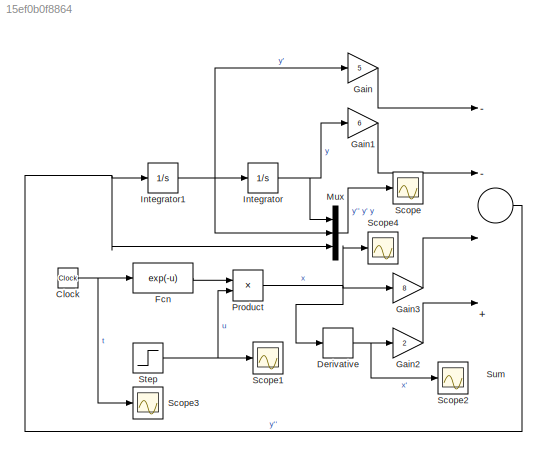
MODEL slx_15ef0b0f8864
KIND model
BLOCK [Clock] Clock
BLOCK [Derivative] Derivative
BLOCK [Fcn] Fcn
  Expr = exp(-u)
BLOCK [Gain] Gain
  Gain = 5
  OutDataTypeStr = Inherit: Inherit via internal rule
  ParamDataTypeStr = Inherit: Inherit via internal rule
  SaturateOnIntegerOverflow = off
BLOCK [Gain] Gain1
  Gain = 6
  OutDataTypeStr = Inherit: Inherit via internal rule
  ParamDataTypeStr = Inherit: Inherit via internal rule
  SaturateOnIntegerOverflow = off
BLOCK [Gain] Gain2
  Gain = 2
  OutDataTypeStr = Inherit: Inherit via internal rule
  ParamDataTypeStr = Inherit: Inherit via internal rule
  SaturateOnIntegerOverflow = off
BLOCK [Gain] Gain3
  Gain = 8
  OutDataTypeStr = Inherit: Inherit via internal rule
  ParamDataTypeStr = Inherit: Inherit via internal rule
  SaturateOnIntegerOverflow = off
BLOCK [Integrator] Integrator
  AttributesFormatString = InitVal = %<InitialCondition>
  InitialCondition = 5
  Ports = [1, 1]
BLOCK [Integrator] Integrator1
  AttributesFormatString = InitVal = %<InitialCondition>
  InitialCondition = -4
  Ports = [1, 1]
BLOCK [Mux] Mux
  DisplayOption = bar
  Inputs = 3
  Ports = [3, 1]
BLOCK [Product] Product
  InputSameDT = off
  OutDataTypeStr = Inherit: Inherit via internal rule
  Ports = [2, 1]
  RndMeth = Floor
  SaturateOnIntegerOverflow = off
BLOCK [Scope] Scope
  DataFormat = StructureWithTime
  Floating = off
  NumInputPorts = 1
  Ports = [1]
  SampleTime = 0
  ShowLegends = off
  ZoomMode = yonly
BLOCK [Scope] Scope1
  DataFormat = StructureWithTime
  Floating = off
  NumInputPorts = 1
  Ports = [1]
  SampleTime = 0
  SaveName = ScopeData1
  ShowLegends = off
  ZoomMode = yonly
BLOCK [Scope] Scope2
  DataFormat = StructureWithTime
  Floating = off
  NumInputPorts = 1
  Ports = [1]
  SampleTime = 0
  SaveName = ScopeData2
  ShowLegends = off
  ZoomMode = yonly
BLOCK [Scope] Scope3
  DataFormat = StructureWithTime
  Floating = off
  NumInputPorts = 1
  Ports = [1]
  SampleTime = 0
  SaveName = ScopeData3
  ShowLegends = off
  ZoomMode = yonly
BLOCK [Scope] Scope4
  DataFormat = StructureWithTime
  Floating = off
  NumInputPorts = 1
  Ports = [1]
  SampleTime = 0
  SaveName = ScopeData4
  ShowLegends = off
  ZoomMode = yonly
BLOCK [Step] Step
  SampleTime = 0
  Time = 4
BLOCK [Sum] Sum
  InputSameDT = off
  Inputs = --||++
  OutDataTypeStr = Inherit: Inherit via internal rule
  Ports = [4, 1]
  SaturateOnIntegerOverflow = off
NET Clock:1 -> Fcn:1, Scope3:1
NET Derivative:1 -> Gain2:1, Scope2:1
LINE Fcn:1 -> Product:1
LINE Gain1:1 -> Sum:2
LINE Gain2:1 -> Sum:4
LINE Gain3:1 -> Sum:3
LINE Gain:1 -> Sum:1
NET Integrator1:1 -> Gain:1, Integrator:1, Mux:2
NET Integrator:1 -> Gain1:1, Mux:1
LINE Mux:1 -> Scope:1
NET Product:1 -> Derivative:1, Gain3:1, Scope4:1
NET Step:1 -> Product:2, Scope1:1
NET Sum:1 -> Integrator1:1, Mux:3
note: NET lines group one-source signal fan-out (src -> all destinations, sorted); 1:1 wires keep LINE
